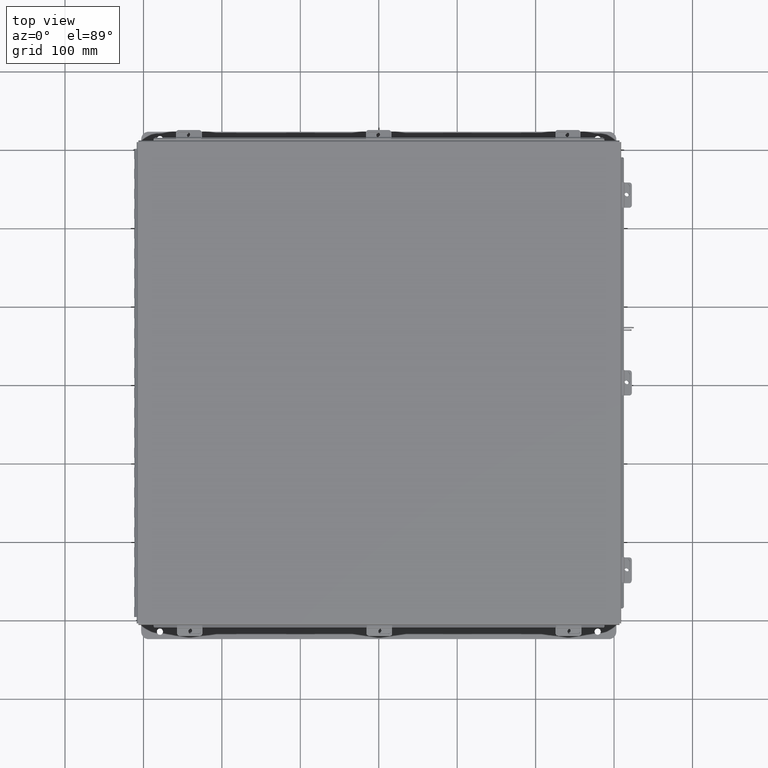
[diagram: clean part render]
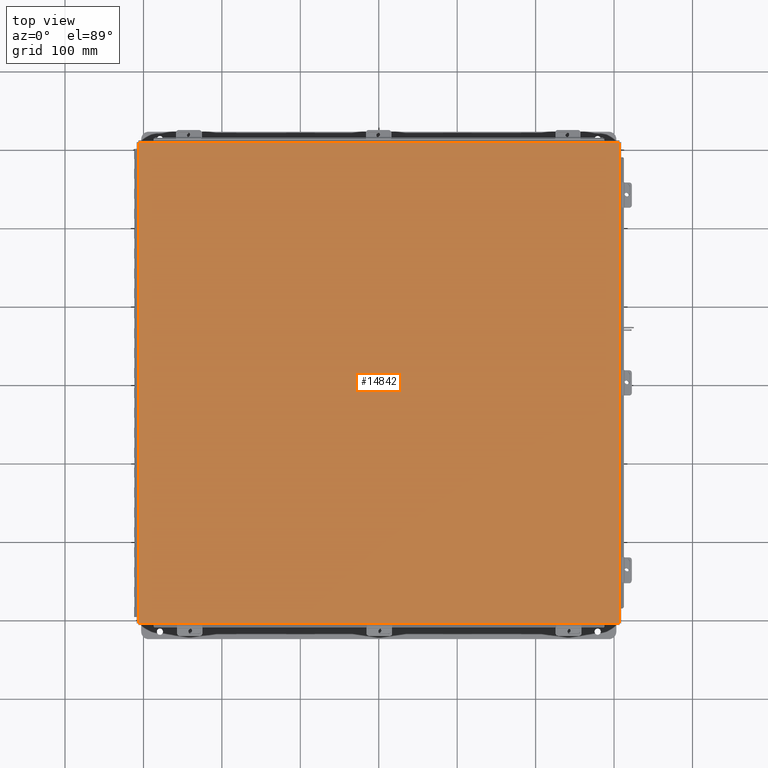
[diagram: same view with one face highlighted and labeled with its STEP entity id]
A machine part, top view. The second image highlights one B-rep face of the part: STEP entity #14842.
In plain terms, the highlighted planar face has unit normal (-0, -0, 1).
Its self-contained STEP definition (entity closure, byte-faithful):
#102 = CARTESIAN_POINT ( 'NONE',  ( -12.06855000000003000, -12.06855000000000200, -0.07470000000000015500 ) ) ;
#1239 = CARTESIAN_POINT ( 'NONE',  ( -12.06855000000003000, 12.06854999999999700, -0.07469999999999797600 ) ) ;
#1656 = EDGE_CURVE ( 'NONE', #24372, #11278, #13933, .T. ) ;
#2780 = VERTEX_POINT ( 'NONE', #102 ) ;
#2947 = EDGE_CURVE ( 'NONE', #11278, #2780, #24880, .T. ) ;
#4059 = CARTESIAN_POINT ( 'NONE',  ( 12.06855000000003900, 12.07447893218813200, -0.07470000000000015500 ) ) ;
#5978 = VERTEX_POINT ( 'NONE', #1239 ) ;
#6845 = CARTESIAN_POINT ( 'NONE',  ( 12.06855000000003900, -12.06855000000000200, -0.07470000000000015500 ) ) ;
#6849 = EDGE_LOOP ( 'NONE', ( #20025, #17710, #8506, #8815 ) ) ;
#7655 = CARTESIAN_POINT ( 'NONE',  ( 12.06855000000003900, 12.06854999999999500, -0.07470000000000015500 ) ) ;
#8506 = ORIENTED_EDGE ( 'NONE', *, *, #2947, .T. ) ;
#8581 = DIRECTION ( 'NONE',  ( -3.166671605124525800E-030, -1.000000000000000000, -1.853823127269377700E-029 ) ) ;
#8815 = ORIENTED_EDGE ( 'NONE', *, *, #9841, .T. ) ;
#9218 = VECTOR ( 'NONE', #14207, 39.37007874015748100 ) ;
#9441 = CARTESIAN_POINT ( 'NONE',  ( -12.06855000000003000, -12.07447893218813600, -0.07470000000000015500 ) ) ;
#9532 = LINE ( 'NONE', #9441, #9218 ) ;
#9841 = EDGE_CURVE ( 'NONE', #2780, #5978, #9532, .T. ) ;
#11278 = VERTEX_POINT ( 'NONE', #6845 ) ;
#11359 = DIRECTION ( 'NONE',  ( -1.000000000000000000, -3.205297876175392200E-030, -8.208677865576288000E-017 ) ) ;
#13348 = VECTOR ( 'NONE', #8581, 39.37007874015748100 ) ;
#13933 = LINE ( 'NONE', #4059, #13348 ) ;
#14207 = DIRECTION ( 'NONE',  ( 3.166671605124525800E-030, 1.000000000000000000, 1.853823127269377700E-029 ) ) ;
#14842 = ADVANCED_FACE ( 'NONE', ( #22519 ), #17093, .T. ) ;
#15522 = VECTOR ( 'NONE', #11359, 39.37007874015748100 ) ;
#16327 = DIRECTION ( 'NONE',  ( -1.000000000000000000, -3.215975411700707400E-030, 0.0000000000000000000 ) ) ;
#16357 = DIRECTION ( 'NONE',  ( 5.938065620492508100E-059, -1.846427556282924300E-029, -1.000000000000000000 ) ) ;
#16407 = CARTESIAN_POINT ( 'NONE',  ( -8.537024980200822600E-018, 0.0000000000000000000, -0.07470000000000015500 ) ) ;
#17093 = PLANE ( 'NONE',  #20800 ) ;
#17710 = ORIENTED_EDGE ( 'NONE', *, *, #1656, .T. ) ;
#20025 = ORIENTED_EDGE ( 'NONE', *, *, #21993, .T. ) ;
#20777 = CARTESIAN_POINT ( 'NONE',  ( 12.07447893218816900, -12.06855000000000200, -0.07470000000000015500 ) ) ;
#20800 = AXIS2_PLACEMENT_3D ( 'NONE', #16407, #16357, #16327 ) ;
#21993 = EDGE_CURVE ( 'NONE', #5978, #24372, #22739, .T. ) ;
#22519 = FACE_OUTER_BOUND ( 'NONE', #6849, .T. ) ;
#22693 = VECTOR ( 'NONE', #23092, 39.37007874015748100 ) ;
#22739 = LINE ( 'NONE', #23085, #22693 ) ;
#23085 = CARTESIAN_POINT ( 'NONE',  ( -12.07447893218816400, 12.06854999999999700, -0.07469999999999797600 ) ) ;
#23092 = DIRECTION ( 'NONE',  ( 1.000000000000000000, 3.399216270243118900E-030, -8.208677865577550200E-017 ) ) ;
#24372 = VERTEX_POINT ( 'NONE', #7655 ) ;
#24880 = LINE ( 'NONE', #20777, #15522 ) ;